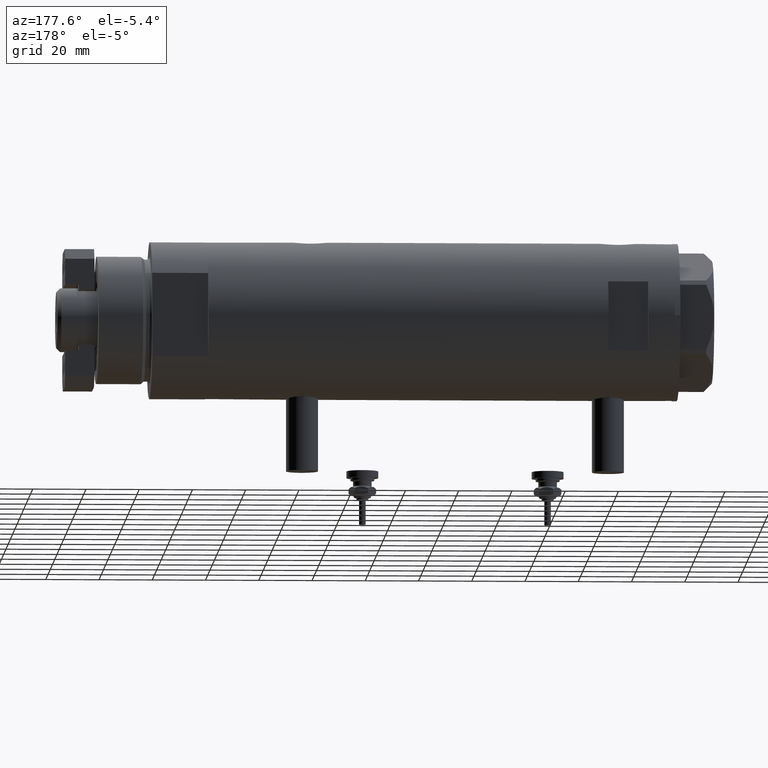
[diagram: clean part render]
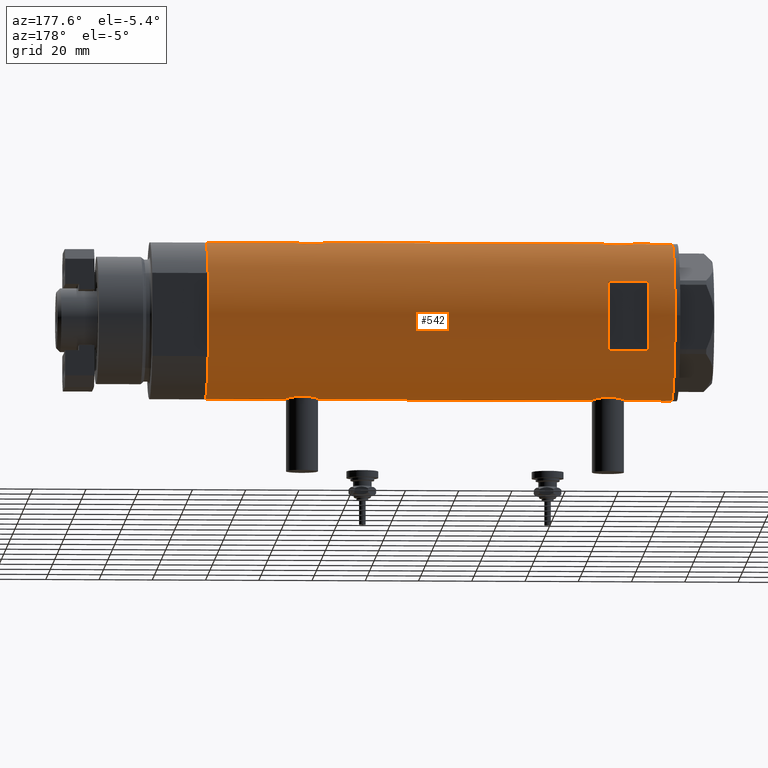
[diagram: same view with one face highlighted and labeled with its STEP entity id]
A machine part, auxiliary view. The second image highlights one B-rep face of the part: STEP entity #542.
In plain terms, the highlighted cylindrical surface (partial cylindrical patch) has radius 29.5 mm, axis along (-1, -0, 0).
Its self-contained STEP definition (entity closure, byte-faithful):
#39 = CARTESIAN_POINT ( 'NONE',  ( 29.31463363472445849, 3.333180401682678262, -55.13656844683045222 ) ) ;
#174 = CARTESIAN_POINT ( 'NONE',  ( 29.14546206473282197, 4.578181670952601756, -42.43943908396708764 ) ) ;
#199 = VERTEX_POINT ( 'NONE', #5284 ) ;
#201 = CARTESIAN_POINT ( 'NONE',  ( 29.40165444879503909, 2.418426732012822544, 59.99632943565210041 ) ) ;
#232 = CARTESIAN_POINT ( 'NONE',  ( 28.72322018454531189, 6.726124749058830510, 70.42706852850997734 ) ) ;
#233 = VECTOR ( 'NONE', #310, 1000.000000000000000 ) ;
#234 = CARTESIAN_POINT ( 'NONE',  ( 28.77649569280673703, 6.494415104660911986, -44.64065011183377152 ) ) ;
#277 = CARTESIAN_POINT ( 'NONE',  ( 28.80468126786726302, 6.368639251981137228, 71.06860510682068366 ) ) ;
#278 = CARTESIAN_POINT ( 'NONE',  ( 28.53073993742368586, 7.499791908386146844, -48.89461948433040561 ) ) ;
#290 = CARTESIAN_POINT ( 'NONE',  ( -28.83035796536222861, 6.249836767212684663, -50.88856505377280115 ) ) ;
#303 = CARTESIAN_POINT ( 'NONE',  ( -29.41782704931130255, 2.208494778271264725, 69.45038297927175108 ) ) ;
#304 = LINE ( 'NONE', #1991, #1340 ) ;
#310 = DIRECTION ( 'NONE',  ( 0.000000000000000000, 0.000000000000000000, 1.000000000000000000 ) ) ;
#312 = VERTEX_POINT ( 'NONE', #2273 ) ;
#318 = CARTESIAN_POINT ( 'NONE',  ( -28.89816269917384162, 5.930588606439753718, -53.31470315542169658 ) ) ;
#335 = DIRECTION ( 'NONE',  ( 0.000000000000000000, 0.000000000000000000, 1.000000000000000000 ) ) ;
#346 = LINE ( 'NONE', #2772, #233 ) ;
#378 = CARTESIAN_POINT ( 'NONE',  ( -29.48289442777306846, 1.024392307325223905, 57.43111777471300883 ) ) ;
#385 = CARTESIAN_POINT ( 'NONE',  ( -29.50000000000000355, 3.612706708236066082E-15, 57.34999999999998721 ) ) ;
#394 = CARTESIAN_POINT ( 'NONE',  ( -29.12335997091253148, 4.707903814166472856, -47.16921992621198001 ) ) ;
#405 = CARTESIAN_POINT ( 'NONE',  ( -29.50000000000000355, 3.612706708236066082E-15, 57.34999999999998721 ) ) ;
#436 = CARTESIAN_POINT ( 'NONE',  ( -28.83028740688047620, 6.250162243045986443, 63.19353934091626002 ) ) ;
#527 = CARTESIAN_POINT ( 'NONE',  ( -29.25435602127558354, 3.814249285079252427, -56.26783729533990908 ) ) ;
#542 = ADVANCED_FACE ( 'NONE', ( #4442, #5958 ), #3937, .T. ) ;
#543 = CARTESIAN_POINT ( 'NONE',  ( 29.43668864566815913, 1.946133027943908633, -55.64730912700998999 ) ) ;
#553 = CARTESIAN_POINT ( 'NONE',  ( -29.50000000000000355, 0.2042768310961517730, -57.55000000000001137 ) ) ;
#578 = VECTOR ( 'NONE', #1819, 1000.000000000000000 ) ;
#580 = CARTESIAN_POINT ( 'NONE',  ( 29.48742029994219038, 0.9867701249543437969, -55.85094507494218163 ) ) ;
#592 = CARTESIAN_POINT ( 'NONE',  ( 29.50000000000000355, -2.136503572369537054E-15, 59.59999999999999432 ) ) ;
#643 = CARTESIAN_POINT ( 'NONE',  ( 28.59637095282950625, 7.245897747848926151, -50.35127374277608681 ) ) ;
#663 = CARTESIAN_POINT ( 'NONE',  ( -12.96148139681573319, 26.49999999999998934, 77.60000000000002274 ) ) ;
#668 = AXIS2_PLACEMENT_3D ( 'NONE', #2945, #1960, #4529 ) ;
#670 = CIRCLE ( 'NONE', #1104, 29.50000000000000355 ) ;
#677 = CARTESIAN_POINT ( 'NONE',  ( 28.89369475765811757, 5.952264974793427754, -43.83049483813753966 ) ) ;
#697 = DIRECTION ( 'NONE',  ( 0.000000000000000000, 0.000000000000000000, 1.000000000000000000 ) ) ;
#711 = CARTESIAN_POINT ( 'NONE',  ( 28.63233008736634133, 7.102474189478613198, 64.67814868761114155 ) ) ;
#712 = CARTESIAN_POINT ( 'NONE',  ( 29.48463566286631377, 0.9832945201638395583, -40.96062548237706835 ) ) ;
#741 = CARTESIAN_POINT ( 'NONE',  ( 28.53063088452983465, 7.500206755597514707, 67.58828856904807481 ) ) ;
#772 = CARTESIAN_POINT ( 'NONE',  ( 29.14416130131008842, 4.572185141625602078, 61.14974588234445463 ) ) ;
#774 = CARTESIAN_POINT ( 'NONE',  ( 29.31521205951408859, 3.327945423969223881, -41.66093490772912133 ) ) ;
#815 = LINE ( 'NONE', #5539, #578 ) ;
#825 = CARTESIAN_POINT ( 'NONE',  ( -28.83925158138407596, 6.209208576703542981, -52.12198382868806590 ) ) ;
#826 = EDGE_CURVE ( 'NONE', #5617, #6585, #670, .T. ) ;
#839 = CARTESIAN_POINT ( 'NONE',  ( 29.31521205951408504, 3.327945423969213223, 73.83906509227089998 ) ) ;
#840 = CARTESIAN_POINT ( 'NONE',  ( -28.91416466586725420, 5.850419487802255070, 65.80827647633630306 ) ) ;
#872 = CARTESIAN_POINT ( 'NONE',  ( -28.99817753551064925, 5.423057650933436058, 66.73396151462593195 ) ) ;
#914 = CARTESIAN_POINT ( 'NONE',  ( -28.89816269917384872, 5.930588606439750166, 61.58529684457829489 ) ) ;
#921 = CARTESIAN_POINT ( 'NONE',  ( -12.96148139681574030, 26.50000000000000355, 62.60000000000001563 ) ) ;
#930 = CARTESIAN_POINT ( 'NONE',  ( -29.49128627113592316, 0.8212788586050391304, -45.09076875091126624 ) ) ;
#942 = CARTESIAN_POINT ( 'NONE',  ( -29.49128627113591605, 0.8212788586050359108, 69.80923124908871102 ) ) ;
#959 = CARTESIAN_POINT ( 'NONE',  ( -29.21113960567726409, 4.128622307952523052, -56.01014533383550997 ) ) ;
#987 = VECTOR ( 'NONE', #1900, 1000.000000000000000 ) ;
#990 = CARTESIAN_POINT ( 'NONE',  ( -29.37021410611214378, 2.770135525807589261, -56.90634069022830488 ) ) ;
#991 = VECTOR ( 'NONE', #3742, 1000.000000000000000 ) ;
#997 = EDGE_CURVE ( 'NONE', #3821, #1475, #6302, .T. ) ;
#998 = CIRCLE ( 'NONE', #4343, 29.50000000000000355 ) ;
#1104 = AXIS2_PLACEMENT_3D ( 'NONE', #3726, #697, #4330 ) ;
#1114 = ORIENTED_EDGE ( 'NONE', *, *, #2432, .F. ) ;
#1178 = CARTESIAN_POINT ( 'NONE',  ( 28.63233008736633778, 7.102474189478610533, -50.82185131238886555 ) ) ;
#1213 = CARTESIAN_POINT ( 'NONE',  ( 28.72322018454529768, 6.726124749058826957, -45.07293147149000845 ) ) ;
#1217 = EDGE_CURVE ( 'NONE', #5166, #312, #2123, .T. ) ;
#1249 = CARTESIAN_POINT ( 'NONE',  ( 28.89325003604224307, 5.958922200807236891, -52.98084786495515175 ) ) ;
#1278 = CARTESIAN_POINT ( 'NONE',  ( 28.69800960089390074, 6.832546664705480666, -45.29724969708693294 ) ) ;
#1281 = B_SPLINE_CURVE_WITH_KNOTS ( 'NONE', 3,
 ( #5870, #3308, #942, #2997, #5999, #4416, #303, #2348, #5532, #1850, #5438, #3510, #6464, #872, #3911, #840, #6510, #5971, #5056, #1408, #2896, #436, #3376, #3473, #914, #1356, #2929, #3412, #5563, #4960, #1989, #2449, #4996, #5028, #1891, #2420, #2480, #1920, #2971, #378, #4553, #6607, #4045, #405 ),
 .UNSPECIFIED., .F., .F.,
 ( 4, 2, 2, 2, 2, 2, 2, 2, 2, 2, 2, 2, 2, 2, 2, 2, 2, 2, 2, 2, 2, 4 ),
 ( 3.579711039243685734E-19, 0.001224749128302344029, 0.001837123692453515285, 0.002449498256604686758, 0.003674247384907013657, 0.004898996513209340556, 0.006123745641511668322, 0.007348494769813995221, 0.007960869333965159972, 0.008573243898116323855, 0.009797993026418609988, 0.01102274215472089959, 0.01224749128302318572, 0.01285986584717433920, 0.01347224041132549614, 0.01469698953962781697, 0.01592173866793014300, 0.01653411323208130515, 0.01714648779623246730, 0.01837123692453479160, 0.01898361148868595721, 0.01959598605283711936 ),
 .UNSPECIFIED. ) ;
#1298 = CARTESIAN_POINT ( 'NONE',  ( -28.87539346372184212, 6.038655803256923527, -49.67547335916925988 ) ) ;
#1306 = CARTESIAN_POINT ( 'NONE',  ( 29.50000000000000355, 0.000000000000000000, -87.59999999999999432 ) ) ;
#1339 = CARTESIAN_POINT ( 'NONE',  ( -29.45614208737134732, 1.620034288692378199, -45.26011356088388737 ) ) ;
#1340 = VECTOR ( 'NONE', #335, 1000.000000000000000 ) ;
#1355 = CARTESIAN_POINT ( 'NONE',  ( 28.72066933684369516, 6.738715173607845443, 63.77163044046444185 ) ) ;
#1356 = CARTESIAN_POINT ( 'NONE',  ( -28.94521404191312541, 5.694822755760258204, 61.01666953598656562 ) ) ;
#1372 = CARTESIAN_POINT ( 'NONE',  ( 0.000000000000000000, 0.000000000000000000, -87.59999999999999432 ) ) ;
#1383 = DIRECTION ( 'NONE',  ( 0.000000000000000000, 0.000000000000000000, 1.000000000000000000 ) ) ;
#1408 = CARTESIAN_POINT ( 'NONE',  ( -28.83909818927744695, 6.209925900742497618, 64.41778075451992436 ) ) ;
#1446 = VECTOR ( 'NONE', #1383, 1000.000000000000000 ) ;
#1475 = VERTEX_POINT ( 'NONE', #663 ) ;
#1497 = CARTESIAN_POINT ( 'NONE',  ( -29.01875661852155019, 5.308007315944003324, -54.60588370000890279 ) ) ;
#1520 = CARTESIAN_POINT ( 'NONE',  ( -29.50000000000000355, 3.612708057484692393E-15, -87.59999999999999432 ) ) ;
#1536 = VECTOR ( 'NONE', #4841, 1000.000000000000000 ) ;
#1565 = DIRECTION ( 'NONE',  ( 0.000000000000000000, 0.000000000000000000, 1.000000000000000000 ) ) ;
#1665 = ORIENTED_EDGE ( 'NONE', *, *, #5730, .T. ) ;
#1672 = LINE ( 'NONE', #2777, #1536 ) ;
#1686 = CARTESIAN_POINT ( 'NONE',  ( -12.96148139681573319, 26.49999999999999645, -87.59999999999999432 ) ) ;
#1687 = CARTESIAN_POINT ( 'NONE',  ( 28.95590528945748687, 5.641861744747095564, -43.45235088071117246 ) ) ;
#1696 = EDGE_CURVE ( 'NONE', #1475, #3484, #998, .T. ) ;
#1753 = CARTESIAN_POINT ( 'NONE',  ( 29.45150476095192360, 1.707859807438202315, 59.79292881343939570 ) ) ;
#1755 = CARTESIAN_POINT ( 'NONE',  ( 29.14416130131007421, 4.572185141625601190, -54.35025411765555248 ) ) ;
#1762 = EDGE_LOOP ( 'NONE', ( #3391, #3628, #5452, #3823 ) ) ;
#1787 = CARTESIAN_POINT ( 'NONE',  ( 29.50000000000000355, -2.136503572369537054E-15, 59.59999999999999432 ) ) ;
#1803 = CARTESIAN_POINT ( 'NONE',  ( -28.99817753551065280, 5.423057650933445828, -48.16603848537405952 ) ) ;
#1819 = DIRECTION ( 'NONE',  ( 0.000000000000000000, 0.000000000000000000, 1.000000000000000000 ) ) ;
#1832 = CARTESIAN_POINT ( 'NONE',  ( -29.37156641804198642, 2.775801885207113351, -45.68527430293367786 ) ) ;
#1848 = CARTESIAN_POINT ( 'NONE',  ( 28.54372006395177763, 7.450900983269892031, 68.08765735635913074 ) ) ;
#1850 = CARTESIAN_POINT ( 'NONE',  ( -29.25454443288368722, 3.812919888526638879, 68.56897379180909979 ) ) ;
#1873 = CARTESIAN_POINT ( 'NONE',  ( -28.96258065965880846, 5.606121065329696229, -54.07051985068762434 ) ) ;
#1874 = EDGE_CURVE ( 'NONE', #4114, #5166, #815, .T. ) ;
#1890 = CARTESIAN_POINT ( 'NONE',  ( 28.86328010881651451, 6.097564286278104539, 71.47368290922693745 ) ) ;
#1891 = CARTESIAN_POINT ( 'NONE',  ( -29.33379699751450431, 3.132328395749495620, 58.18767835513889253 ) ) ;
#1900 = DIRECTION ( 'NONE',  ( -0.000000000000000000, -0.000000000000000000, -1.000000000000000000 ) ) ;
#1920 = CARTESIAN_POINT ( 'NONE',  ( -29.43341305963175003, 2.016871341298210663, 57.67025331001193678 ) ) ;
#1960 = DIRECTION ( 'NONE',  ( 0.000000000000000000, 4.625929269271487689E-15, 1.000000000000000000 ) ) ;
#1989 = CARTESIAN_POINT ( 'NONE',  ( -29.12318177724206336, 4.709191267490247412, 59.47028949758345817 ) ) ;
#1991 = CARTESIAN_POINT ( 'NONE',  ( 29.50000000000000355, 0.000000000000000000, -87.59999999999999432 ) ) ;
#2001 = LINE ( 'NONE', #1520, #4546 ) ;
#2007 = CARTESIAN_POINT ( 'NONE',  ( -29.31451746246149526, 3.307268797680013694, -56.60714841985004142 ) ) ;
#2037 = CARTESIAN_POINT ( 'NONE',  ( -29.12318177724206691, 4.709191267490247412, -55.42971050241654751 ) ) ;
#2088 = ORIENTED_EDGE ( 'NONE', *, *, #1217, .F. ) ;
#2091 = CARTESIAN_POINT ( 'NONE',  ( 29.26187100173485334, 3.763222966830669147, -54.90598258060620651 ) ) ;
#2123 = B_SPLINE_CURVE_WITH_KNOTS ( 'NONE', 3,
 ( #1787, #3844, #2253, #1753, #3812, #201, #5393, #5437, #2322, #4931, #772, #2827, #3411, #5869, #3306, #4389, #1355, #2763, #711, #2347, #4456, #6509, #4413, #741, #1848, #4901, #4858, #3871, #232, #2286, #277, #1890, #6436, #5927, #3373, #3908, #5970, #3948, #839, #2895, #5337, #2523, #6063, #2927, #3568, #3074 ),
 .UNSPECIFIED., .F., .F.,
 ( 4, 2, 2, 2, 2, 2, 2, 2, 2, 2, 2, 2, 2, 2, 2, 2, 2, 2, 2, 2, 2, 2, 4 ),
 ( 2.075019889373263572E-18, 0.001471587963626213007, 0.002207381945439318427, 0.002943175927252423846, 0.004414763890878631650, 0.005150557872691736636, 0.005886351854504842489, 0.007357939818131036848, 0.008829527781757228605, 0.009565321763570345734, 0.01030111574538346113, 0.01177270370900965375, 0.01324429167263584638, 0.01471587963626204074, 0.01545167361807513358, 0.01618746759988822989, 0.01692326158170132794, 0.01765905556351441905, 0.01913064352714058391, 0.02060223149076674184, 0.02207381945439290671, 0.02280961343620598394, 0.02354540741801906811 ),
 .UNSPECIFIED. ) ;
#2221 = CARTESIAN_POINT ( 'NONE',  ( 28.80468126786726657, 6.368639251981141669, -44.43139489317929502 ) ) ;
#2231 = CARTESIAN_POINT ( 'NONE',  ( 12.96148139681571898, 26.50000000000000355, 62.60000000000001563 ) ) ;
#2251 = EDGE_LOOP ( 'NONE', ( #3064, #1665, #4484, #2926, #3321, #4493, #6345, #3791, #2088, #2291, #1114, #5581 ) ) ;
#2253 = CARTESIAN_POINT ( 'NONE',  ( 29.48742029994219394, 0.9867701249543444630, 59.64905492505780416 ) ) ;
#2262 = CARTESIAN_POINT ( 'NONE',  ( 12.96148139681573319, 26.49999999999999645, -87.59999999999999432 ) ) ;
#2273 = CARTESIAN_POINT ( 'NONE',  ( 29.50000000000000355, -8.867894669064240341E-21, 74.59999999999999432 ) ) ;
#2286 = CARTESIAN_POINT ( 'NONE',  ( 28.77649569280672992, 6.494415104660914650, 70.85934988816623559 ) ) ;
#2288 = CARTESIAN_POINT ( 'NONE',  ( 28.58083212642745607, 7.306745240314146628, -50.10953669436206326 ) ) ;
#2291 = ORIENTED_EDGE ( 'NONE', *, *, #1874, .F. ) ;
#2308 = CARTESIAN_POINT ( 'NONE',  ( -29.33500454540941149, 3.134363790739244759, -45.87737865536319504 ) ) ;
#2322 = CARTESIAN_POINT ( 'NONE',  ( 29.26187100173485334, 3.763222966830670480, 60.59401741939379349 ) ) ;
#2323 = CARTESIAN_POINT ( 'NONE',  ( 29.43913092143246146, 1.954882548385549423, -41.14250765266648813 ) ) ;
#2336 = CARTESIAN_POINT ( 'NONE',  ( -28.83028740688047620, 6.250162243045991772, -51.70646065908373856 ) ) ;
#2347 = CARTESIAN_POINT ( 'NONE',  ( 28.59637095282950270, 7.245897747848927040, 65.14872625722391319 ) ) ;
#2348 = CARTESIAN_POINT ( 'NONE',  ( -29.37156641804199708, 2.775801885207113795, 69.21472569706632783 ) ) ;
#2363 = CARTESIAN_POINT ( 'NONE',  ( -28.94521404191311831, 5.694822755760264421, -53.88333046401345428 ) ) ;
#2420 = CARTESIAN_POINT ( 'NONE',  ( -29.37021410611213312, 2.770135525807581711, 57.99365930977168659 ) ) ;
#2432 = EDGE_CURVE ( 'NONE', #199, #4114, #5875, .T. ) ;
#2449 = CARTESIAN_POINT ( 'NONE',  ( -29.21113960567726764, 4.128622307952521275, 58.88985466616444597 ) ) ;
#2480 = CARTESIAN_POINT ( 'NONE',  ( -29.38727827406289705, 2.583363936682820938, 57.90521973871332051 ) ) ;
#2522 = EDGE_CURVE ( 'NONE', #4355, #3257, #1281, .T. ) ;
#2523 = CARTESIAN_POINT ( 'NONE',  ( 29.47533087885488712, 1.230190383163952239, 74.50252131767059893 ) ) ;
#2543 = CARTESIAN_POINT ( 'NONE',  ( -29.43341305963175714, 2.016871341298211551, -57.22974668998805470 ) ) ;
#2565 = DIRECTION ( 'NONE',  ( -0.000000000000000000, -0.000000000000000000, -1.000000000000000000 ) ) ;
#2588 = CARTESIAN_POINT ( 'NONE',  ( 29.38138226830144006, 2.652609128011935269, -55.41954601959671578 ) ) ;
#2596 = DIRECTION ( 'NONE',  ( 1.000000000000000000, -1.776356839400250267E-15, 0.000000000000000000 ) ) ;
#2691 = CARTESIAN_POINT ( 'NONE',  ( 28.72066933684370227, 6.738715173607846332, -51.72836955953554394 ) ) ;
#2732 = CARTESIAN_POINT ( 'NONE',  ( 29.47533087885489067, 1.230190383163956458, -40.99747868232940817 ) ) ;
#2763 = CARTESIAN_POINT ( 'NONE',  ( 28.65280969280607692, 7.019670864411689415, 64.44786831316889675 ) ) ;
#2772 = CARTESIAN_POINT ( 'NONE',  ( -29.50000000000000355, 3.612708057484692393E-15, -87.59999999999999432 ) ) ;
#2777 = CARTESIAN_POINT ( 'NONE',  ( -29.50000000000000355, 3.612708057484692393E-15, -87.59999999999999432 ) ) ;
#2790 = CARTESIAN_POINT ( 'NONE',  ( 28.53063088452982043, 7.500206755597514707, -47.91171143095193230 ) ) ;
#2791 = DIRECTION ( 'NONE',  ( 1.000000000000000000, 0.000000000000000000, 0.000000000000000000 ) ) ;
#2827 = CARTESIAN_POINT ( 'NONE',  ( 29.08204711695421452, 4.951923910293527520, 61.46183978405700543 ) ) ;
#2829 = CARTESIAN_POINT ( 'NONE',  ( 29.50000000000000355, -8.867894669064240341E-21, -40.89999999999999858 ) ) ;
#2881 = CARTESIAN_POINT ( 'NONE',  ( -28.87327190949136835, 6.049038945481238549, -52.92451728205170980 ) ) ;
#2895 = CARTESIAN_POINT ( 'NONE',  ( 29.40387556522357571, 2.422597899785625231, 74.21486039769831677 ) ) ;
#2896 = CARTESIAN_POINT ( 'NONE',  ( -28.83035796536222861, 6.249836767212677557, 64.01143494622724006 ) ) ;
#2926 = ORIENTED_EDGE ( 'NONE', *, *, #6519, .T. ) ;
#2927 = CARTESIAN_POINT ( 'NONE',  ( 29.49693976195335665, 0.4910732786937788696, 74.58799094295621046 ) ) ;
#2929 = CARTESIAN_POINT ( 'NONE',  ( -28.96258065965881912, 5.606121065329691788, 60.82948014931239555 ) ) ;
#2945 = CARTESIAN_POINT ( 'NONE',  ( 0.000000000000000000, 0.000000000000000000, 62.60000000000011511 ) ) ;
#2957 = CARTESIAN_POINT ( 'NONE',  ( -29.25454443288369433, 3.812919888526644652, -46.33102620819088457 ) ) ;
#2971 = CARTESIAN_POINT ( 'NONE',  ( -29.45783481716065211, 1.627188261681551396, 57.55163589091055343 ) ) ;
#2986 = CARTESIAN_POINT ( 'NONE',  ( -29.41782704931129899, 2.208494778271262948, -45.44961702072823329 ) ) ;
#2997 = CARTESIAN_POINT ( 'NONE',  ( -29.46640581083894261, 1.421634556901801627, 69.68958891089418728 ) ) ;
#3045 = VERTEX_POINT ( 'NONE', #1306 ) ;
#3055 = CARTESIAN_POINT ( 'NONE',  ( -29.48933702067641249, 0.8192029158410176759, -57.49950722266699898 ) ) ;
#3064 = ORIENTED_EDGE ( 'NONE', *, *, #4164, .T. ) ;
#3074 = CARTESIAN_POINT ( 'NONE',  ( 29.50000000000000355, -8.867894669064240341E-21, 74.59999999999999432 ) ) ;
#3084 = CARTESIAN_POINT ( 'NONE',  ( -29.50000000000000355, 3.612708057484692393E-15, -87.59999999999999432 ) ) ;
#3120 = CARTESIAN_POINT ( 'NONE',  ( -29.48289442777307201, 1.024392307325228124, -57.46888222528699686 ) ) ;
#3137 = CARTESIAN_POINT ( 'NONE',  ( 29.50000000000000711, 0.4977435627019808351, -55.89999999999999147 ) ) ;
#3151 = CARTESIAN_POINT ( 'NONE',  ( -29.45783481716064856, 1.627188261681552284, -57.34836410908944515 ) ) ;
#3178 = CARTESIAN_POINT ( 'NONE',  ( 29.40165444879503909, 2.418426732012822100, -55.50367056434786406 ) ) ;
#3238 = CARTESIAN_POINT ( 'NONE',  ( 28.98787507734748914, 5.475789924529796515, -43.26910956623376592 ) ) ;
#3257 = VERTEX_POINT ( 'NONE', #385 ) ;
#3306 = CARTESIAN_POINT ( 'NONE',  ( 28.89325003604224307, 5.958922200807243996, 62.51915213504485536 ) ) ;
#3308 = CARTESIAN_POINT ( 'NONE',  ( -29.50000000000000355, 0.4142160563134685836, 69.84999999999999432 ) ) ;
#3321 = ORIENTED_EDGE ( 'NONE', *, *, #2522, .F. ) ;
#3338 = CARTESIAN_POINT ( 'NONE',  ( 29.08308069045668631, 4.954707331652121738, -42.74826371623226606 ) ) ;
#3373 = CARTESIAN_POINT ( 'NONE',  ( 28.98787507734748914, 5.475789924529800956, 72.23089043376626250 ) ) ;
#3376 = CARTESIAN_POINT ( 'NONE',  ( -28.83925158138408307, 6.209208576703538540, 62.77801617131193979 ) ) ;
#3387 = CARTESIAN_POINT ( 'NONE',  ( -29.50000000000000355, 3.612706708267620518E-15, -57.55000000000000426 ) ) ;
#3391 = ORIENTED_EDGE ( 'NONE', *, *, #997, .F. ) ;
#3395 = CARTESIAN_POINT ( 'NONE',  ( -29.50000000000000355, -1.989795151372050188E-15, -45.04999999999999005 ) ) ;
#3411 = CARTESIAN_POINT ( 'NONE',  ( 29.05056090758569098, 5.132790299589558458, 61.62608273347917276 ) ) ;
#3412 = CARTESIAN_POINT ( 'NONE',  ( -28.99931529802531927, 5.412890550536861412, 60.46870800944782331 ) ) ;
#3429 = DIRECTION ( 'NONE',  ( 0.000000000000000000, 0.000000000000000000, 1.000000000000000000 ) ) ;
#3473 = CARTESIAN_POINT ( 'NONE',  ( -28.87327190949138256, 6.049038945481236773, 61.97548271794827457 ) ) ;
#3484 = VERTEX_POINT ( 'NONE', #6314 ) ;
#3510 = CARTESIAN_POINT ( 'NONE',  ( -29.12335997091252793, 4.707903814166463974, 67.73078007378802567 ) ) ;
#3568 = CARTESIAN_POINT ( 'NONE',  ( 29.50000000000000355, 0.2453482418156841816, 74.59999999999999432 ) ) ;
#3572 = CIRCLE ( 'NONE', #668, 29.50000000000000355 ) ;
#3592 = CARTESIAN_POINT ( 'NONE',  ( -29.38727827406290416, 2.583363936682823603, -56.99478026128668517 ) ) ;
#3620 = VERTEX_POINT ( 'NONE', #3387 ) ;
#3625 = VERTEX_POINT ( 'NONE', #2231 ) ;
#3628 = ORIENTED_EDGE ( 'NONE', *, *, #6537, .F. ) ;
#3726 = CARTESIAN_POINT ( 'NONE',  ( 0.000000000000000000, 0.000000000000000000, 87.59999999999999432 ) ) ;
#3742 = DIRECTION ( 'NONE',  ( 0.000000000000000000, 0.000000000000000000, 1.000000000000000000 ) ) ;
#3743 = CARTESIAN_POINT ( 'NONE',  ( 28.54372006395177763, 7.450900983269891142, -47.41234264364084794 ) ) ;
#3772 = DIRECTION ( 'NONE',  ( 0.000000000000000000, 0.000000000000000000, 1.000000000000000000 ) ) ;
#3791 = ORIENTED_EDGE ( 'NONE', *, *, #4221, .F. ) ;
#3812 = CARTESIAN_POINT ( 'NONE',  ( 29.43668864566816268, 1.946133027943908855, 59.85269087298998869 ) ) ;
#3813 = CARTESIAN_POINT ( 'NONE',  ( 28.54350045195475971, 7.451747857568896016, -49.38266002875501925 ) ) ;
#3821 = VERTEX_POINT ( 'NONE', #921 ) ;
#3823 = ORIENTED_EDGE ( 'NONE', *, *, #1696, .F. ) ;
#3844 = CARTESIAN_POINT ( 'NONE',  ( 29.50000000000000711, 0.4977435627019807241, 59.60000000000000853 ) ) ;
#3860 = CARTESIAN_POINT ( 'NONE',  ( -28.91416466586724354, 5.850419487802259511, -49.09172352366371683 ) ) ;
#3871 = CARTESIAN_POINT ( 'NONE',  ( 28.69800960089391140, 6.832546664705483330, 70.20275030291304574 ) ) ;
#3890 = CARTESIAN_POINT ( 'NONE',  ( -29.21045586191521082, 4.133246019522343495, -46.59426098433518604 ) ) ;
#3908 = CARTESIAN_POINT ( 'NONE',  ( 29.08308069045667565, 4.954707331652127955, 72.75173628376771262 ) ) ;
#3911 = CARTESIAN_POINT ( 'NONE',  ( -28.96085629491409819, 5.616414220648535682, 66.37199639590009781 ) ) ;
#3934 = CARTESIAN_POINT ( 'NONE',  ( -28.99931529802529795, 5.412890550536865852, -54.43129199055216816 ) ) ;
#3937 = CYLINDRICAL_SURFACE ( 'NONE', #5615, 29.50000000000000355 ) ;
#3948 = CARTESIAN_POINT ( 'NONE',  ( 29.26131531204080360, 3.767377415172555644, 73.60345302571126069 ) ) ;
#4031 = CARTESIAN_POINT ( 'NONE',  ( -29.50000000000000355, 3.612706708267620518E-15, -57.55000000000000426 ) ) ;
#4045 = CARTESIAN_POINT ( 'NONE',  ( -29.49999999999999645, 0.2042768310961489142, 57.34999999999998010 ) ) ;
#4114 = VERTEX_POINT ( 'NONE', #4255 ) ;
#4154 = CARTESIAN_POINT ( 'NONE',  ( 29.17471722935868428, 4.373569479501278501, -54.49768842409016401 ) ) ;
#4164 = EDGE_CURVE ( 'NONE', #3045, #6461, #5102, .T. ) ;
#4221 = EDGE_CURVE ( 'NONE', #312, #5617, #4903, .T. ) ;
#4254 = CARTESIAN_POINT ( 'NONE',  ( 28.95615051861771860, 5.649234316505054032, -53.35715418746725192 ) ) ;
#4255 = CARTESIAN_POINT ( 'NONE',  ( 29.50000000000000355, -8.867894669064240341E-21, -40.89999999999999858 ) ) ;
#4283 = EDGE_CURVE ( 'NONE', #3045, #199, #304, .T. ) ;
#4314 = CARTESIAN_POINT ( 'NONE',  ( 29.08204711695421452, 4.951923910293528408, -54.03816021594297325 ) ) ;
#4330 = DIRECTION ( 'NONE',  ( 1.000000000000000000, 0.000000000000000000, 0.000000000000000000 ) ) ;
#4343 = AXIS2_PLACEMENT_3D ( 'NONE', #5702, #2565, #2596 ) ;
#4355 = VERTEX_POINT ( 'NONE', #6511 ) ;
#4375 = CARTESIAN_POINT ( 'NONE',  ( -29.07990598238133373, 4.966177878631063081, -47.48314968353489718 ) ) ;
#4389 = CARTESIAN_POINT ( 'NONE',  ( 28.77473834757382321, 6.507156404236264180, 63.33837315939705093 ) ) ;
#4390 = CARTESIAN_POINT ( 'NONE',  ( 28.65280969280606982, 7.019670864411686750, -51.05213168683109615 ) ) ;
#4391 = CARTESIAN_POINT ( 'NONE',  ( 29.50000000000000355, 0.000000000000000000, -87.59999999999999432 ) ) ;
#4413 = CARTESIAN_POINT ( 'NONE',  ( 28.53073993742369296, 7.499791908386148620, 66.60538051566959439 ) ) ;
#4416 = CARTESIAN_POINT ( 'NONE',  ( -29.43187585711094911, 2.013330896687708815, 69.52040860029104863 ) ) ;
#4437 = CARTESIAN_POINT ( 'NONE',  ( -28.96085629491409108, 5.616414220648541011, -48.52800360409992209 ) ) ;
#4442 = FACE_BOUND ( 'NONE', #1762, .T. ) ;
#4456 = CARTESIAN_POINT ( 'NONE',  ( 28.58083212642745252, 7.306745240314150180, 65.39046330563792253 ) ) ;
#4484 = ORIENTED_EDGE ( 'NONE', *, *, #5122, .F. ) ;
#4493 = ORIENTED_EDGE ( 'NONE', *, *, #6267, .T. ) ;
#4529 = DIRECTION ( 'NONE',  ( 0.000000000000000000, 1.000000000000000000, -4.704334850106595203E-15 ) ) ;
#4546 = VECTOR ( 'NONE', #1565, 1000.000000000000000 ) ;
#4553 = CARTESIAN_POINT ( 'NONE',  ( -29.48933702067640539, 0.8192029158410146783, 57.40049277733301381 ) ) ;
#4629 = CARTESIAN_POINT ( 'NONE',  ( 29.50000000000000355, -1.363453657738827866E-15, -55.89999999999999858 ) ) ;
#4661 = CARTESIAN_POINT ( 'NONE',  ( 29.45150476095192360, 1.707859807438201871, -55.70707118656059720 ) ) ;
#4796 = CARTESIAN_POINT ( 'NONE',  ( 29.50000000000000711, 0.2453482418156837930, -40.89999999999999858 ) ) ;
#4841 = DIRECTION ( 'NONE',  ( 0.000000000000000000, 0.000000000000000000, 1.000000000000000000 ) ) ;
#4851 = B_SPLINE_CURVE_WITH_KNOTS ( 'NONE', 3,
 ( #5513, #5045, #930, #5454, #1339, #6452, #2986, #1832, #2308, #2957, #3890, #394, #4375, #1803, #4437, #3860, #5916, #1298, #5416, #4917, #290, #2336, #825, #2881, #318, #2363, #1873, #3934, #1497, #6186, #2037, #959, #527, #2007, #5678, #990, #3592, #2543, #3151, #3120, #3055, #5110, #553, #4031 ),
 .UNSPECIFIED., .F., .F.,
 ( 4, 2, 2, 2, 2, 2, 2, 2, 2, 2, 2, 2, 2, 2, 2, 2, 2, 2, 2, 2, 2, 4 ),
 ( 1.932886166535861628E-18, 0.001224749128302346848, 0.001837123692453517237, 0.002449498256604687625, 0.003674247384907027535, 0.004898996513209368311, 0.006123745641511708221, 0.007348494769814048130, 0.007960869333965210279, 0.008573243898116372427, 0.009797993026418693255, 0.01102274215472101582, 0.01224749128302333664, 0.01285986584717448838, 0.01347224041132563666, 0.01469698953962794014, 0.01592173866793024709, 0.01653411323208139536, 0.01714648779623254710, 0.01837123692453484017, 0.01898361148868598497, 0.01959598605283713324 ),
 .UNSPECIFIED. ) ;
#4858 = CARTESIAN_POINT ( 'NONE',  ( 28.62953349941190595, 7.116010646391488947, 69.51979460923099907 ) ) ;
#4859 = CARTESIAN_POINT ( 'NONE',  ( 28.62953349941190240, 7.116010646391488947, -45.98020539076898672 ) ) ;
#4901 = CARTESIAN_POINT ( 'NONE',  ( 28.59328333056173221, 7.258376466535471749, 69.05124667484832912 ) ) ;
#4902 = CARTESIAN_POINT ( 'NONE',  ( 29.05056090758568388, 5.132790299589556682, -53.87391726652084145 ) ) ;
#4903 = LINE ( 'NONE', #4391, #1446 ) ;
#4917 = CARTESIAN_POINT ( 'NONE',  ( -28.83909818927744340, 6.209925900742502058, -50.48221924548004580 ) ) ;
#4931 = CARTESIAN_POINT ( 'NONE',  ( 29.17471722935868073, 4.373569479501278501, 61.00231157590981468 ) ) ;
#4960 = CARTESIAN_POINT ( 'NONE',  ( -29.07940225710135351, 4.969011347753393260, 59.78730265529816990 ) ) ;
#4996 = CARTESIAN_POINT ( 'NONE',  ( -29.25435602127558354, 3.814249285079249319, 58.63216270466007529 ) ) ;
#5028 = CARTESIAN_POINT ( 'NONE',  ( -29.31451746246149881, 3.307268797680012806, 58.29285158014997137 ) ) ;
#5045 = CARTESIAN_POINT ( 'NONE',  ( -29.50000000000000711, 0.4142160563134685836, -45.04999999999999716 ) ) ;
#5056 = CARTESIAN_POINT ( 'NONE',  ( -28.86473101544358499, 6.089252369705491219, 65.02332949166031995 ) ) ;
#5064 = CARTESIAN_POINT ( 'NONE',  ( -29.50000000000000355, 3.612708057484692393E-15, 87.59999999999999432 ) ) ;
#5102 = CIRCLE ( 'NONE', #5643, 29.50000000000000355 ) ;
#5110 = CARTESIAN_POINT ( 'NONE',  ( -29.49787850362430675, 0.4089683628077651623, -57.54001026437015298 ) ) ;
#5122 = EDGE_CURVE ( 'NONE', #5886, #3620, #4851, .T. ) ;
#5166 = VERTEX_POINT ( 'NONE', #592 ) ;
#5284 = CARTESIAN_POINT ( 'NONE',  ( 29.50000000000000355, -1.363453657738827866E-15, -55.89999999999999858 ) ) ;
#5296 = CARTESIAN_POINT ( 'NONE',  ( 29.40387556522357571, 2.422597899785629227, -41.28513960230168323 ) ) ;
#5337 = CARTESIAN_POINT ( 'NONE',  ( 29.43913092143246146, 1.954882548385545649, 74.35749234733351898 ) ) ;
#5366 = CARTESIAN_POINT ( 'NONE',  ( 28.59328333056173221, 7.258376466535469085, -46.44875332515167798 ) ) ;
#5367 = CARTESIAN_POINT ( 'NONE',  ( 0.000000000000000000, 0.000000000000000000, -87.59999999999999432 ) ) ;
#5393 = CARTESIAN_POINT ( 'NONE',  ( 29.38138226830143651, 2.652609128011935713, 60.08045398040327001 ) ) ;
#5394 = CARTESIAN_POINT ( 'NONE',  ( 28.77473834757381610, 6.507156404236260627, -52.16162684060293486 ) ) ;
#5416 = CARTESIAN_POINT ( 'NONE',  ( -28.86473101544359210, 6.089252369705496548, -49.87667050833969284 ) ) ;
#5437 = CARTESIAN_POINT ( 'NONE',  ( 29.31463363472445849, 3.333180401682676930, 60.36343155316954068 ) ) ;
#5438 = CARTESIAN_POINT ( 'NONE',  ( -29.21045586191520371, 4.133246019522335502, 68.30573901566479833 ) ) ;
#5452 = ORIENTED_EDGE ( 'NONE', *, *, #6309, .F. ) ;
#5454 = CARTESIAN_POINT ( 'NONE',  ( -29.46640581083894261, 1.421634556901805402, -45.21041108910578998 ) ) ;
#5483 = DIRECTION ( 'NONE',  ( 1.000000000000000000, 0.000000000000000000, 0.000000000000000000 ) ) ;
#5513 = CARTESIAN_POINT ( 'NONE',  ( -29.50000000000000355, -1.989795151372050188E-15, -45.04999999999999005 ) ) ;
#5532 = CARTESIAN_POINT ( 'NONE',  ( -29.33500454540941149, 3.134363790739238542, 69.02262134463678933 ) ) ;
#5539 = CARTESIAN_POINT ( 'NONE',  ( 29.50000000000000355, 0.000000000000000000, -87.59999999999999432 ) ) ;
#5563 = CARTESIAN_POINT ( 'NONE',  ( -29.01875661852155019, 5.308007315944000659, 60.29411629999106736 ) ) ;
#5581 = ORIENTED_EDGE ( 'NONE', *, *, #4283, .F. ) ;
#5615 = AXIS2_PLACEMENT_3D ( 'NONE', #1372, #3429, #5483 ) ;
#5617 = VERTEX_POINT ( 'NONE', #6348 ) ;
#5643 = AXIS2_PLACEMENT_3D ( 'NONE', #5367, #3772, #2791 ) ;
#5678 = CARTESIAN_POINT ( 'NONE',  ( -29.33379699751449365, 3.132328395749501393, -56.71232164486110605 ) ) ;
#5702 = CARTESIAN_POINT ( 'NONE',  ( 0.000000000000000000, 0.000000000000000000, 77.60000000000002274 ) ) ;
#5730 = EDGE_CURVE ( 'NONE', #6461, #3620, #1672, .T. ) ;
#5797 = CARTESIAN_POINT ( 'NONE',  ( 28.86328010881652872, 6.097564286278109869, -44.02631709077303412 ) ) ;
#5829 = CARTESIAN_POINT ( 'NONE',  ( 29.26131531204081426, 3.767377415172554311, -41.89654697428871799 ) ) ;
#5869 = CARTESIAN_POINT ( 'NONE',  ( 28.95615051861771860, 5.649234316505054920, 62.14284581253274098 ) ) ;
#5870 = CARTESIAN_POINT ( 'NONE',  ( -29.50000000000000355, -3.685106651658548747E-16, 69.84999999999999432 ) ) ;
#5875 = B_SPLINE_CURVE_WITH_KNOTS ( 'NONE', 3,
 ( #4629, #3137, #580, #4661, #543, #3178, #2588, #39, #2091, #4154, #1755, #4314, #4902, #4254, #1249, #5394, #2691, #4390, #1178, #643, #2288, #3813, #278, #2790, #3743, #5366, #4859, #1278, #1213, #234, #2221, #5797, #677, #1687, #3238, #3338, #174, #5829, #774, #5296, #2323, #2732, #712, #6437, #4796, #2829 ),
 .UNSPECIFIED., .F., .F.,
 ( 4, 2, 2, 2, 2, 2, 2, 2, 2, 2, 2, 2, 2, 2, 2, 2, 2, 2, 2, 2, 2, 2, 4 ),
 ( 1.324216582005999085E-18, 0.001471587963626213007, 0.002207381945439318427, 0.002943175927252423846, 0.004414763890878634252, 0.005150557872691738370, 0.005886351854504841621, 0.007357939818131030776, 0.008829527781757219931, 0.009565321763570316244, 0.01030111574538341256, 0.01177270370900960171, 0.01324429167263579260, 0.01471587963626198176, 0.01545167361807507807, 0.01618746759988817091, 0.01692326158170126896, 0.01765905556351436007, 0.01913064352714053881, 0.02060223149076671756, 0.02207381945439289284, 0.02280961343620598047, 0.02354540741801906811 ),
 .UNSPECIFIED. ) ;
#5886 = VERTEX_POINT ( 'NONE', #3395 ) ;
#5916 = CARTESIAN_POINT ( 'NONE',  ( -28.90008889585328333, 5.919338933253951218, -49.28359792941950701 ) ) ;
#5927 = CARTESIAN_POINT ( 'NONE',  ( 28.95590528945748687, 5.641861744747097340, 72.04764911928884885 ) ) ;
#5958 = FACE_OUTER_BOUND ( 'NONE', #2251, .T. ) ;
#5970 = CARTESIAN_POINT ( 'NONE',  ( 29.14546206473281487, 4.578181670952602644, 73.06056091603291236 ) ) ;
#5971 = CARTESIAN_POINT ( 'NONE',  ( -28.87539346372185634, 6.038655803256916421, 65.22452664083074581 ) ) ;
#5999 = CARTESIAN_POINT ( 'NONE',  ( -29.45614208737133310, 1.620034288692375535, 69.63988643911609699 ) ) ;
#6063 = CARTESIAN_POINT ( 'NONE',  ( 29.48463566286631377, 0.9832945201638393362, 74.53937451762291744 ) ) ;
#6186 = CARTESIAN_POINT ( 'NONE',  ( -29.07940225710134996, 4.969011347753393260, -55.11269734470185000 ) ) ;
#6267 = EDGE_CURVE ( 'NONE', #4355, #6585, #346, .T. ) ;
#6302 = LINE ( 'NONE', #1686, #991 ) ;
#6309 = EDGE_CURVE ( 'NONE', #3484, #3625, #6445, .T. ) ;
#6314 = CARTESIAN_POINT ( 'NONE',  ( 12.96148139681573319, 26.49999999999998934, 77.60000000000002274 ) ) ;
#6345 = ORIENTED_EDGE ( 'NONE', *, *, #826, .F. ) ;
#6348 = CARTESIAN_POINT ( 'NONE',  ( 29.50000000000000355, 0.000000000000000000, 87.59999999999999432 ) ) ;
#6436 = CARTESIAN_POINT ( 'NONE',  ( 28.89369475765812112, 5.952264974793427754, 71.66950516186246034 ) ) ;
#6437 = CARTESIAN_POINT ( 'NONE',  ( 29.49693976195336020, 0.4910732786937798133, -40.91200905704376112 ) ) ;
#6445 = LINE ( 'NONE', #2262, #987 ) ;
#6452 = CARTESIAN_POINT ( 'NONE',  ( -29.43187585711095267, 2.013330896687710592, -45.37959139970892863 ) ) ;
#6461 = VERTEX_POINT ( 'NONE', #3084 ) ;
#6464 = CARTESIAN_POINT ( 'NONE',  ( -29.07990598238132662, 4.966177878631055087, 67.41685031646507298 ) ) ;
#6509 = CARTESIAN_POINT ( 'NONE',  ( 28.54350045195475971, 7.451747857568897793, 66.11733997124500206 ) ) ;
#6510 = CARTESIAN_POINT ( 'NONE',  ( -28.90008889585329044, 5.919338933253946777, 65.61640207058047736 ) ) ;
#6511 = CARTESIAN_POINT ( 'NONE',  ( -29.50000000000000355, -3.685106651658548747E-16, 69.84999999999999432 ) ) ;
#6519 = EDGE_CURVE ( 'NONE', #5886, #3257, #2001, .T. ) ;
#6537 = EDGE_CURVE ( 'NONE', #3625, #3821, #3572, .T. ) ;
#6585 = VERTEX_POINT ( 'NONE', #5064 ) ;
#6607 = CARTESIAN_POINT ( 'NONE',  ( -29.49787850362430319, 0.4089683628077612210, 57.35998973562983849 ) ) ;